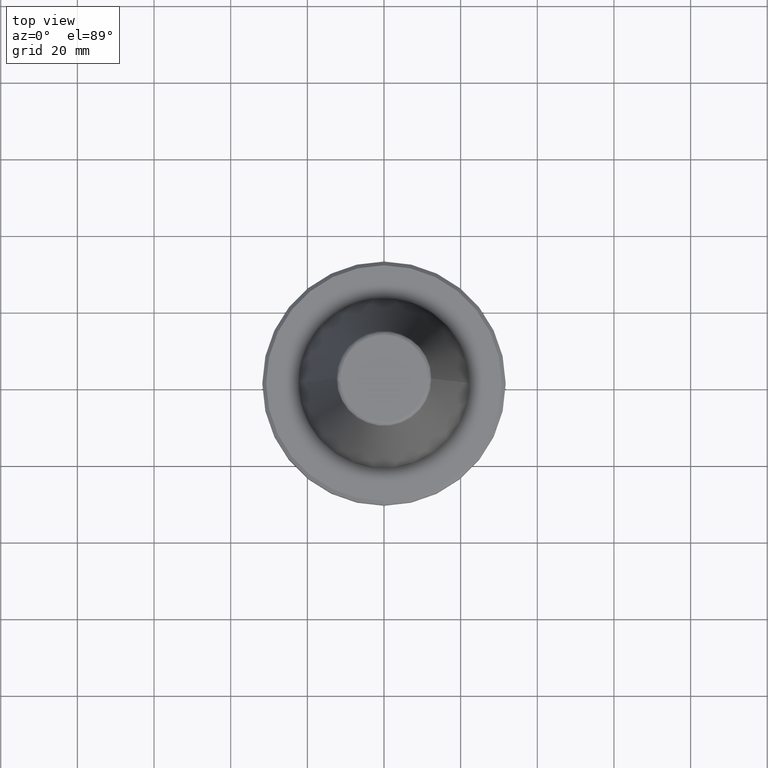
[diagram: clean part render]
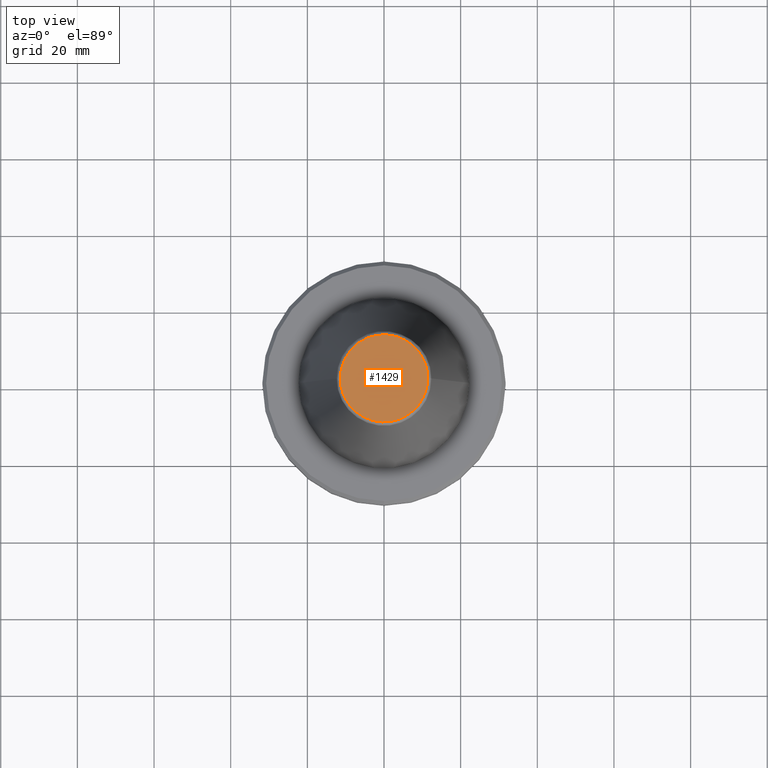
[diagram: same view with one face highlighted and labeled with its STEP entity id]
A machine part, top view. The second image highlights one B-rep face of the part: STEP entity #1429.
In plain terms, the highlighted planar face has unit normal (0, 0, 1).
Its self-contained STEP definition (entity closure, byte-faithful):
#135 = DIRECTION ( 'NONE',  ( 1.000000000000000000, 0.0000000000000000000, -0.0000000000000000000 ) ) ;
#138 = CARTESIAN_POINT ( 'NONE',  ( -11.52178454100000100, -11.52178454100000100, 68.40000000000000600 ) ) ;
#179 = DIRECTION ( 'NONE',  ( 0.0000000000000000000, 0.0000000000000000000, 1.000000000000000000 ) ) ;
#193 = PLANE ( 'NONE',  #1521 ) ;
#492 = VERTEX_POINT ( 'NONE', #1259 ) ;
#586 = ORIENTED_EDGE ( 'NONE', *, *, #961, .F. ) ;
#618 = FACE_OUTER_BOUND ( 'NONE', #1024, .T. ) ;
#715 = VERTEX_POINT ( 'NONE', #1114 ) ;
#788 = ORIENTED_EDGE ( 'NONE', *, *, #966, .F. ) ;
#811 =( BOUNDED_CURVE ( )  B_SPLINE_CURVE ( 3, ( #942, #938, #932, #931 ),
 .UNSPECIFIED., .F., .F. ) 
 B_SPLINE_CURVE_WITH_KNOTS ( ( 4, 4 ),
 ( 0.0000000000000000000, 1.000000000000000000 ),
 .UNSPECIFIED. ) 
 CURVE ( )  GEOMETRIC_REPRESENTATION_ITEM ( )  RATIONAL_B_SPLINE_CURVE ( ( 0.9606698264625276300, 0.3202232754875091200, 0.3202232754875091200, 0.9606698264625276300 ) ) 
 REPRESENTATION_ITEM ( '' )  );
#840 =( BOUNDED_CURVE ( )  B_SPLINE_CURVE ( 3, ( #957, #960, #948, #946 ),
 .UNSPECIFIED., .F., .F. ) 
 B_SPLINE_CURVE_WITH_KNOTS ( ( 4, 4 ),
 ( 0.0000000000000000000, 1.000000000000000000 ),
 .UNSPECIFIED. ) 
 CURVE ( )  GEOMETRIC_REPRESENTATION_ITEM ( )  RATIONAL_B_SPLINE_CURVE ( ( 0.9606698264625278500, 0.3202232754875091200, 0.3202232754875091200, 0.9606698264625278500 ) ) 
 REPRESENTATION_ITEM ( '' )  );
#931 = CARTESIAN_POINT ( 'NONE',  ( -11.38516258738788200, 0.0000000000000000000, 68.39999999982889300 ) ) ;
#932 = CARTESIAN_POINT ( 'NONE',  ( -11.38516258736446900, -22.77032517488440200, 68.39999999971479400 ) ) ;
#938 = CARTESIAN_POINT ( 'NONE',  ( 11.38516258736446900, -22.77032517488440200, 68.39999999971479400 ) ) ;
#942 = CARTESIAN_POINT ( 'NONE',  ( 11.38516258738787800, 0.0000000000000000000, 68.39999999982889300 ) ) ;
#946 = CARTESIAN_POINT ( 'NONE',  ( 11.38516258738787800, 0.0000000000000000000, 68.39999999982889300 ) ) ;
#948 = CARTESIAN_POINT ( 'NONE',  ( 11.38516258736446900, 22.77032517488440200, 68.39999999971480800 ) ) ;
#957 = CARTESIAN_POINT ( 'NONE',  ( -11.38516258738788200, 0.0000000000000000000, 68.39999999982889300 ) ) ;
#960 = CARTESIAN_POINT ( 'NONE',  ( -11.38516258736446900, 22.77032517488440200, 68.39999999971480800 ) ) ;
#961 = EDGE_CURVE ( 'NONE', #715, #492, #840, .T. ) ;
#966 = EDGE_CURVE ( 'NONE', #492, #715, #811, .T. ) ;
#1024 = EDGE_LOOP ( 'NONE', ( #586, #788 ) ) ;
#1114 = CARTESIAN_POINT ( 'NONE',  ( -11.38516258738788200, 0.0000000000000000000, 68.39999999982889300 ) ) ;
#1259 = CARTESIAN_POINT ( 'NONE',  ( 11.38516258738787800, 0.0000000000000000000, 68.39999999982889300 ) ) ;
#1429 = ADVANCED_FACE ( 'NONE', ( #618 ), #193, .T. ) ;
#1521 = AXIS2_PLACEMENT_3D ( 'NONE', #138, #179, #135 ) ;